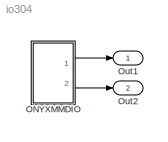
MODEL io304
KIND model
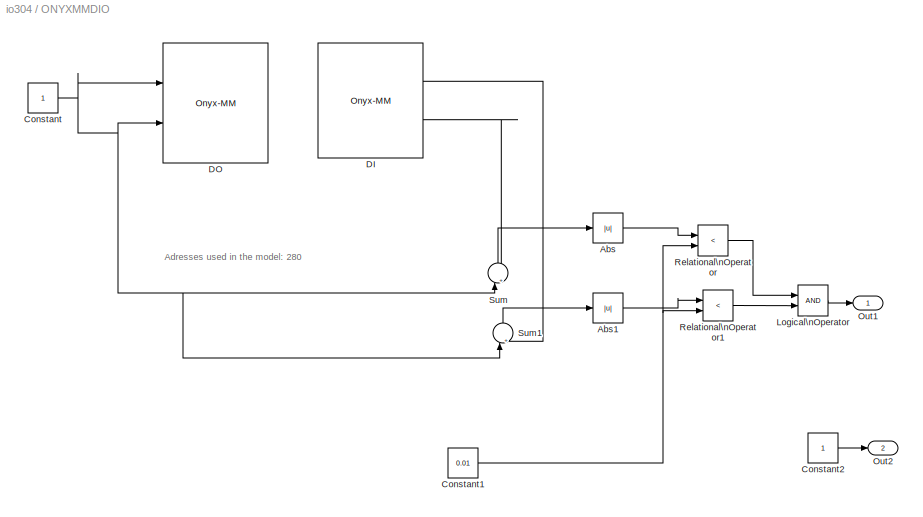
BLOCK [SubSystem] ONYXMMDIO
  MinAlgLoopOccurrences = off
  Ports = [0, 2]
  PropExecContextAcrossSSBoundary = on
  RTWSystemCode = Auto
  TreatAsAtomicUnit = off
BLOCK [Abs] ONYXMMDIO/Abs
BLOCK [Abs] ONYXMMDIO/Abs1
BLOCK [Constant] ONYXMMDIO/Constant
BLOCK [Constant] ONYXMMDIO/Constant1
  Value = 0.01
BLOCK [Constant] ONYXMMDIO/Constant2
BLOCK [Reference] ONYXMMDIO/DI  REF=xpclib/Digital\nInput/Diamond/Onyx-MM 
  Ports = [0, 2]
  SourceBlock = xpclib/Digital\nInput/Diamond/Onyx-MM
  SourceType = didsonyxmm
  baseaddress = 0x240
  channel = [1 5]
  chip = 1
  port = B
  sampletime = .001
BLOCK [Reference] ONYXMMDIO/DO  REF=xpclib/Digital\nOutput/Diamond/Onyx-MM 
  Ports = [2]
  SourceBlock = xpclib/Digital\nOutput/Diamond/Onyx-MM
  SourceType = dodsonyxmm
  baseaddress = 0x240
  channel = [1 5]
  chip = 1
  initValue = [0]
  port = C
  reset = [1]
  sampletime = .001
BLOCK [Logic] ONYXMMDIO/Logical\nOperator
  AllPortsSameDT = off
  Ports = [2, 1]
BLOCK [Outport] ONYXMMDIO/Out1
  IconDisplay = Port number
BLOCK [Outport] ONYXMMDIO/Out2
  IconDisplay = Port number
  Port = 2
BLOCK [RelationalOperator] ONYXMMDIO/Relational\nOperator
  InputSameDT = off
  Operator = <
BLOCK [RelationalOperator] ONYXMMDIO/Relational\nOperator1
  InputSameDT = off
  Operator = <
BLOCK [Sum] ONYXMMDIO/Sum
  IconShape = round
  InputSameDT = off
  Inputs = |+-
  OutDataTypeMode = Inherit via internal rule
  Ports = [2, 1]
BLOCK [Sum] ONYXMMDIO/Sum1
  IconShape = round
  InputSameDT = off
  Inputs = |+-
  OutDataTypeMode = Inherit via internal rule
  Ports = [2, 1]
BLOCK [Outport] Out1
  IconDisplay = Port number
BLOCK [Outport] Out2
  IconDisplay = Port number
  Port = 2
ANNOTATION ONYXMMDIO: Adresses used in the model: 280
LINE ONYXMMDIO/Abs1:1 -> ONYXMMDIO/Relational\nOperator1:1
LINE ONYXMMDIO/Abs:1 -> ONYXMMDIO/Relational\nOperator:1
NET ONYXMMDIO/Constant1:1 -> ONYXMMDIO/Relational\nOperator1:2, ONYXMMDIO/Relational\nOperator:2
LINE ONYXMMDIO/Constant2:1 -> ONYXMMDIO/Out2:1
NET ONYXMMDIO/Constant:1 -> ONYXMMDIO/DO:1, ONYXMMDIO/DO:2, ONYXMMDIO/Sum1:1, ONYXMMDIO/Sum:1
LINE ONYXMMDIO/DI:1 -> ONYXMMDIO/Sum1:2
LINE ONYXMMDIO/DI:2 -> ONYXMMDIO/Sum:2
LINE ONYXMMDIO/Logical\nOperator:1 -> ONYXMMDIO/Out1:1
LINE ONYXMMDIO/Relational\nOperator1:1 -> ONYXMMDIO/Logical\nOperator:2
LINE ONYXMMDIO/Relational\nOperator:1 -> ONYXMMDIO/Logical\nOperator:1
LINE ONYXMMDIO/Sum1:1 -> ONYXMMDIO/Abs1:1
LINE ONYXMMDIO/Sum:1 -> ONYXMMDIO/Abs:1
LINE ONYXMMDIO:1 -> Out1:1
LINE ONYXMMDIO:2 -> Out2:1
note: NET lines group one-source signal fan-out (src -> all destinations, sorted); 1:1 wires keep LINE
